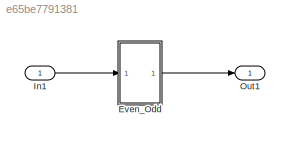
MODEL slx_e65be7791381
KIND model
CONFIG AbsTol = auto
CONFIG EnableMultiTasking = off
CONFIG FixedStep = auto
CONFIG MaxStep = auto
CONFIG MinStep = auto
CONFIG RelTol = 1e-3
CONFIG SampleTimeConstraint = Unconstrained
CONFIG SolverName = FixedStepDiscrete
CONFIG StartTime = 0.0
CONFIG StopTime = 10.0
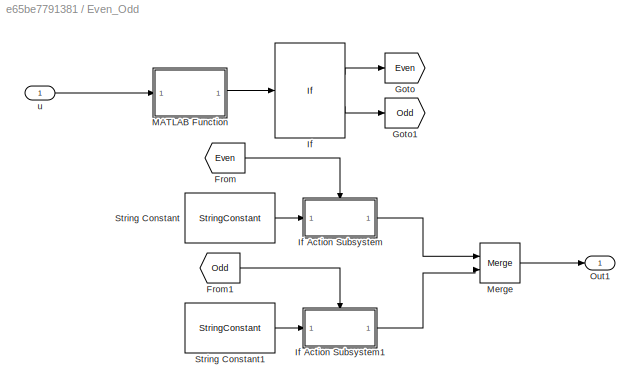
BLOCK [SubSystem] Even_Odd
  Ports = [1, 1]
  RequestExecContextInheritance = off
  TreatAsAtomicUnit = on
BLOCK [From] Even_Odd/From
  GotoTag = Even
BLOCK [From] Even_Odd/From1
  GotoTag = Odd
BLOCK [Goto] Even_Odd/Goto
  GotoTag = Even
BLOCK [Goto] Even_Odd/Goto1
  GotoTag = Odd
BLOCK [If] Even_Odd/If
  IfExpression = u1 == 0
  Ports = [1, 2]
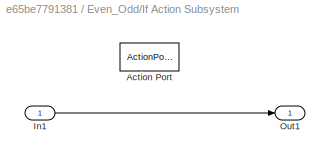
BLOCK [SubSystem] Even_Odd/If Action Subsystem
  Ports = [1, 1, 0, 0, 0, 0, 0, 1]
  RequestExecContextInheritance = off
  TreatAsAtomicUnit = on
BLOCK [ActionPort] Even_Odd/If Action Subsystem/Action Port
  ActionPortLabel = if(u1 == 0)
BLOCK [Inport] Even_Odd/If Action Subsystem/In1
BLOCK [Outport] Even_Odd/If Action Subsystem/Out1
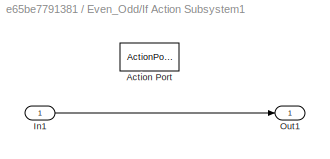
BLOCK [SubSystem] Even_Odd/If Action Subsystem1
  Ports = [1, 1, 0, 0, 0, 0, 0, 1]
  RequestExecContextInheritance = off
  TreatAsAtomicUnit = on
BLOCK [ActionPort] Even_Odd/If Action Subsystem1/Action Port
  ActionPortLabel = else
BLOCK [Inport] Even_Odd/If Action Subsystem1/In1
BLOCK [Outport] Even_Odd/If Action Subsystem1/Out1
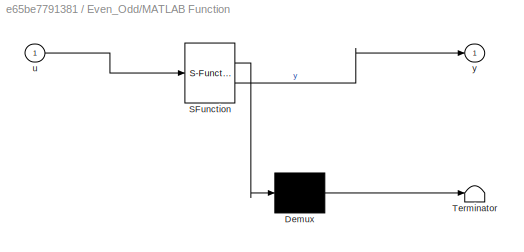
BLOCK [SubSystem] Even_Odd/MATLAB Function
  ErrorFcn = Stateflow.Translate.translate
  PermitHierarchicalResolution = ExplicitOnly
  Ports = [1, 1]
  RequestExecContextInheritance = off
  SFBlockType = MATLAB Function
  TreatAsAtomicUnit = on
BLOCK [Demux] Even_Odd/MATLAB Function/ Demux 
  Outputs = 1
  Ports = [1, 1]
BLOCK [S-Function] Even_Odd/MATLAB Function/ SFunction 
  EnableBusSupport = on
  FunctionName = sf_sfun
  PortCounts = [1 2]
  Ports = [1, 2]
  SFcnIsStateOwnerBlock = off
  SFunctionDeploymentMode = off
  Tag = Stateflow S-Function 2
BLOCK [Terminator] Even_Odd/MATLAB Function/ Terminator 
BLOCK [Inport] Even_Odd/MATLAB Function/u
BLOCK [Outport] Even_Odd/MATLAB Function/y
BLOCK [Merge] Even_Odd/Merge
  Ports = [2, 1]
BLOCK [Outport] Even_Odd/Out1
BLOCK [StringConstant] Even_Odd/String Constant
  String = "The number is even!"
BLOCK [StringConstant] Even_Odd/String Constant1
  String = "The number is odd!"
BLOCK [Inport] Even_Odd/u
BLOCK [Inport] In1
BLOCK [Outport] Out1
LINE Even_Odd/From1:1 -> Even_Odd/If Action Subsystem1:ifaction
LINE Even_Odd/From:1 -> Even_Odd/If Action Subsystem:ifaction
LINE Even_Odd/If Action Subsystem/In1:1 -> Even_Odd/If Action Subsystem/Out1:1
LINE Even_Odd/If Action Subsystem1/In1:1 -> Even_Odd/If Action Subsystem1/Out1:1
LINE Even_Odd/If Action Subsystem1:1 -> Even_Odd/Merge:2
LINE Even_Odd/If Action Subsystem:1 -> Even_Odd/Merge:1
LINE Even_Odd/If:1 -> Even_Odd/Goto:1
LINE Even_Odd/If:2 -> Even_Odd/Goto1:1
LINE Even_Odd/MATLAB Function:1 -> Even_Odd/If:1
LINE Even_Odd/Merge:1 -> Even_Odd/Out1:1
LINE Even_Odd/String Constant1:1 -> Even_Odd/If Action Subsystem1:1
LINE Even_Odd/String Constant:1 -> Even_Odd/If Action Subsystem:1
LINE Even_Odd/u:1 -> Even_Odd/MATLAB Function:1
LINE Even_Odd:1 -> Out1:1
LINE In1:1 -> Even_Odd:1
CHART Even_Odd/MATLAB Function states=1 transitions=1
  STATE_LABEL 'eML_blk_kernel()'
  STATE_LABEL 'SCRIPT:\nfunction y = Even_odd(u)\nif rem(u,2) == 0 \ny = 0;  \nelse \ny = 1;  \nend \n\n'
CHART  states=0 transitions=0
